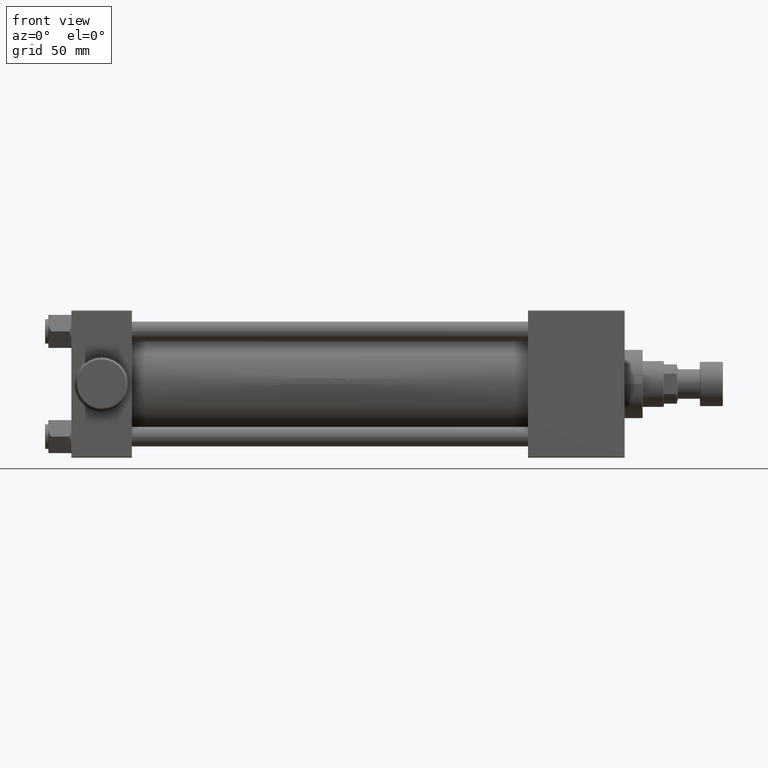
[diagram: clean part render]
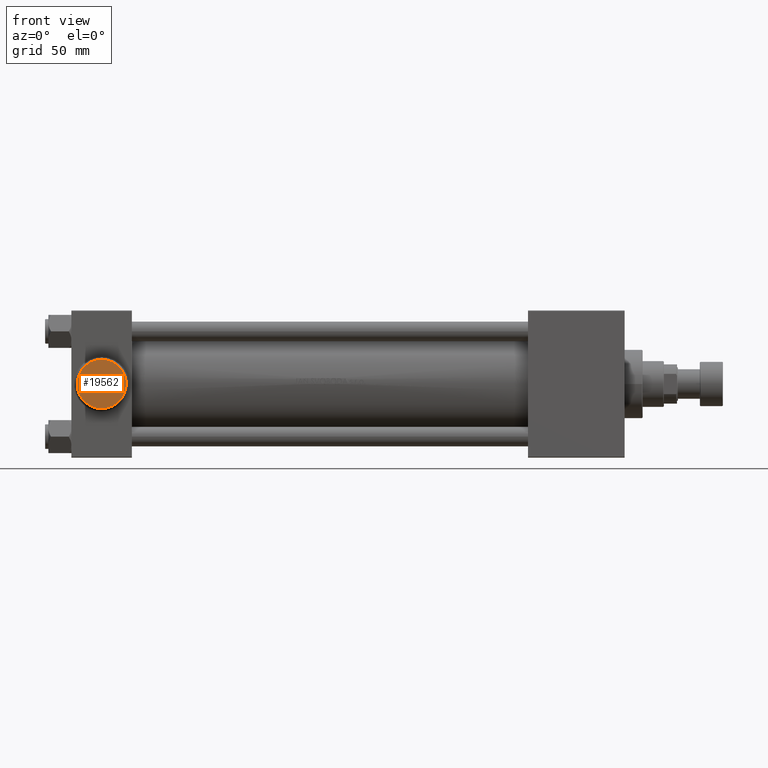
[diagram: same view with one face highlighted and labeled with its STEP entity id]
A machine part, front view. The second image highlights one B-rep face of the part: STEP entity #19562.
In plain terms, the highlighted planar face has unit normal (0, -1, -0).
Its self-contained STEP definition (entity closure, byte-faithful):
#264 = AXIS2_PLACEMENT_3D ( 'NONE', #26722, #23179, #737 ) ;
#361 = ORIENTED_EDGE ( 'NONE', *, *, #20775, .T. ) ;
#737 = DIRECTION ( 'NONE',  ( 0.000000000000000000, 0.000000000000000000, -1.000000000000000000 ) ) ;
#1457 = DIRECTION ( 'NONE',  ( 0.000000000000000000, -1.000000000000000000, -8.673617379884036705E-17 ) ) ;
#1728 = VERTEX_POINT ( 'NONE', #43542 ) ;
#1762 = CIRCLE ( 'NONE', #44065, 15.00000000000006573 ) ;
#3046 = EDGE_LOOP ( 'NONE', ( #21199, #361 ) ) ;
#3635 = CARTESIAN_POINT ( 'NONE',  ( 18.50000000000000000, -71.00000000000001421, 15.00000000000006217 ) ) ;
#8783 = DIRECTION ( 'NONE',  ( 0.000000000000000000, 8.673617379884036705E-17, -1.000000000000000000 ) ) ;
#13829 = VERTEX_POINT ( 'NONE', #3635 ) ;
#19562 = ADVANCED_FACE ( 'NONE', ( #37406 ), #30073, .T. ) ;
#20775 = EDGE_CURVE ( 'NONE', #1728, #13829, #41031, .T. ) ;
#21199 = ORIENTED_EDGE ( 'NONE', *, *, #29729, .T. ) ;
#23179 = DIRECTION ( 'NONE',  ( 0.000000000000000000, -1.000000000000000000, -8.673617379884036705E-17 ) ) ;
#26722 = CARTESIAN_POINT ( 'NONE',  ( 18.50000000000000000, -71.00000000000001421, -5.724587470723464989E-15 ) ) ;
#28272 = CARTESIAN_POINT ( 'NONE',  ( 18.50000000000000000, -71.00000000000001421, -5.724587470723464989E-15 ) ) ;
#29729 = EDGE_CURVE ( 'NONE', #13829, #1728, #1762, .T. ) ;
#30073 = PLANE ( 'NONE',  #44910 ) ;
#37406 = FACE_OUTER_BOUND ( 'NONE', #3046, .T. ) ;
#41031 = CIRCLE ( 'NONE', #264, 15.00000000000006573 ) ;
#41180 = CARTESIAN_POINT ( 'NONE',  ( 18.50000000000000000, -71.00000000000001421, -5.724587470723464989E-15 ) ) ;
#43542 = CARTESIAN_POINT ( 'NONE',  ( 18.50000000000000355, -71.00000000000001421, -15.00000000000007283 ) ) ;
#44065 = AXIS2_PLACEMENT_3D ( 'NONE', #28272, #46473, #45534 ) ;
#44910 = AXIS2_PLACEMENT_3D ( 'NONE', #41180, #1457, #8783 ) ;
#45534 = DIRECTION ( 'NONE',  ( 0.000000000000000000, 0.000000000000000000, -1.000000000000000000 ) ) ;
#46473 = DIRECTION ( 'NONE',  ( 0.000000000000000000, -1.000000000000000000, -8.673617379884036705E-17 ) ) ;